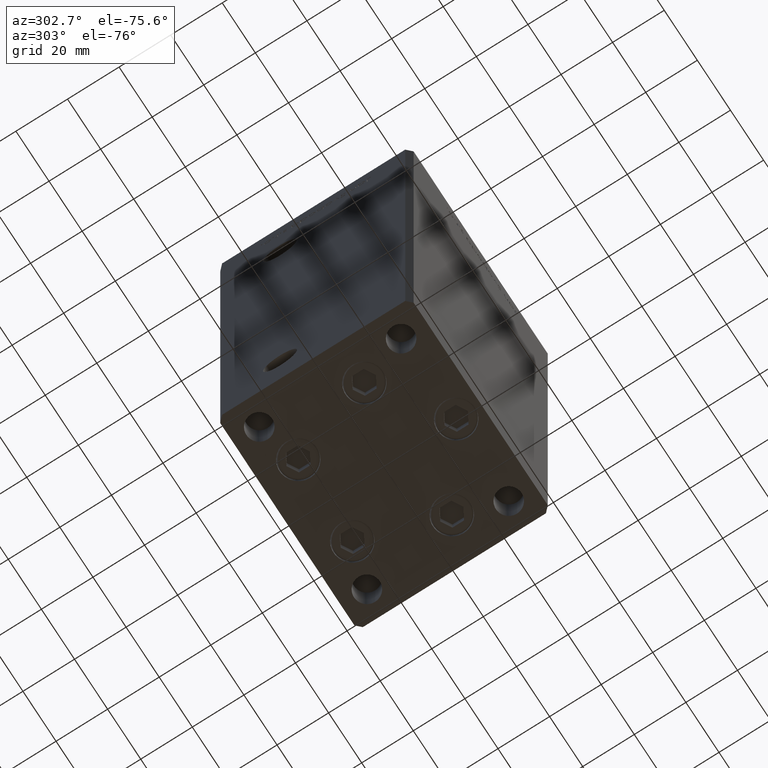
[diagram: clean part render]
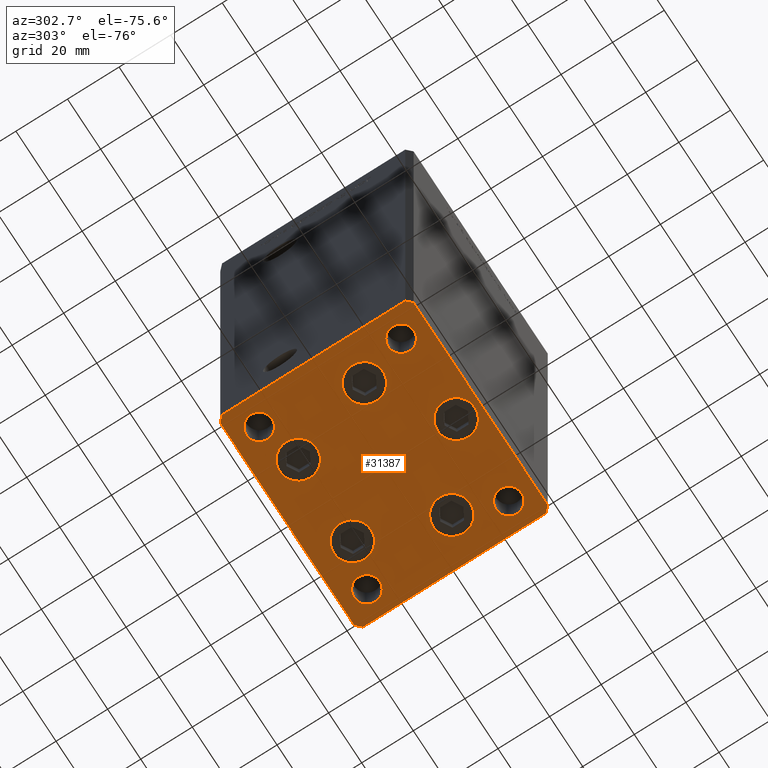
[diagram: same view with one face highlighted and labeled with its STEP entity id]
A machine part, auxiliary view. The second image highlights one B-rep face of the part: STEP entity #31387.
In plain terms, the highlighted planar face has unit normal (0, 0, -1).
Its self-contained STEP definition (entity closure, byte-faithful):
#150 = EDGE_CURVE ( 'NONE', #41811, #26216, #30981, .T. ) ;
#286 = EDGE_CURVE ( 'NONE', #32165, #18664, #42970, .T. ) ;
#545 = CARTESIAN_POINT ( 'NONE',  ( -40.50000000000000711, 37.49999999999997868, 0.000000000000000000 ) ) ;
#552 = CARTESIAN_POINT ( 'NONE',  ( -7.249999999999997335, -28.00000000000000000, 0.000000000000000000 ) ) ;
#1009 = VERTEX_POINT ( 'NONE', #41678 ) ;
#1276 = CARTESIAN_POINT ( 'NONE',  ( 26.39865316429776954, -9.333333333333330373, 0.000000000000000000 ) ) ;
#1353 = CARTESIAN_POINT ( 'NONE',  ( -37.50000000000000711, 27.50000000000000355, 0.000000000000000000 ) ) ;
#1846 = CARTESIAN_POINT ( 'NONE',  ( 16.32291334290542295, 22.75000000000000000, 0.000000000000000000 ) ) ;
#2514 = CARTESIAN_POINT ( 'NONE',  ( 40.50000000000000000, -37.50000000000000711, 0.000000000000000000 ) ) ;
#2724 = DIRECTION ( 'NONE',  ( 1.000000000000000000, 0.000000000000000000, 0.000000000000000000 ) ) ;
#3072 = EDGE_CURVE ( 'NONE', #12134, #10012, #31247, .T. ) ;
#3199 = EDGE_CURVE ( 'NONE', #18664, #13181, #16350, .T. ) ;
#3408 = ORIENTED_EDGE ( 'NONE', *, *, #12516, .T. ) ;
#3484 = EDGE_CURVE ( 'NONE', #37125, #48735, #24334, .T. ) ;
#3594 = EDGE_LOOP ( 'NONE', ( #42714, #15016 ) ) ;
#4018 = DIRECTION ( 'NONE',  ( 0.7071067811865474617, 0.7071067811865474617, 0.000000000000000000 ) ) ;
#4193 = DIRECTION ( 'NONE',  ( 1.000000000000000000, 0.000000000000000000, 0.000000000000000000 ) ) ;
#4529 = CARTESIAN_POINT ( 'NONE',  ( 9.072913342905424727, 22.75000000000000000, 0.000000000000000000 ) ) ;
#5028 = CARTESIAN_POINT ( 'NONE',  ( -26.39865316429776954, -9.333333333333337478, 0.000000000000000000 ) ) ;
#5107 = LINE ( 'NONE', #41504, #9364 ) ;
#5206 = DIRECTION ( 'NONE',  ( 0.000000000000000000, -0.000000000000000000, -1.000000000000000000 ) ) ;
#5222 = VERTEX_POINT ( 'NONE', #25588 ) ;
#5261 = CIRCLE ( 'NONE', #16162, 5.000000000000000888 ) ;
#5386 = EDGE_CURVE ( 'NONE', #26216, #41811, #6687, .T. ) ;
#5472 = DIRECTION ( 'NONE',  ( 0.7071067811865463515, -0.7071067811865487940, 0.000000000000000000 ) ) ;
#5665 = AXIS2_PLACEMENT_3D ( 'NONE', #29285, #29027, #41161 ) ;
#5703 = DIRECTION ( 'NONE',  ( 1.000000000000000000, 0.000000000000000000, 0.000000000000000000 ) ) ;
#5773 = DIRECTION ( 'NONE',  ( 0.000000000000000000, -0.000000000000000000, -1.000000000000000000 ) ) ;
#6368 = CARTESIAN_POINT ( 'NONE',  ( -16.32291334290543006, 22.74999999999999645, 0.000000000000000000 ) ) ;
#6644 = CARTESIAN_POINT ( 'NONE',  ( 40.49999999999991473, 37.50000000000000711, 0.000000000000000000 ) ) ;
#6687 = CIRCLE ( 'NONE', #18479, 7.249999999999999112 ) ;
#6985 = ORIENTED_EDGE ( 'NONE', *, *, #20418, .T. ) ;
#7387 = CARTESIAN_POINT ( 'NONE',  ( 27.50000000000000355, 27.49999999999999645, 0.000000000000000000 ) ) ;
#7642 = VECTOR ( 'NONE', #48804, 1000.000000000000000 ) ;
#7651 = EDGE_LOOP ( 'NONE', ( #12923, #8435, #42142, #8816, #23055, #43240, #42962, #41369 ) ) ;
#7696 = AXIS2_PLACEMENT_3D ( 'NONE', #20681, #33328, #36762 ) ;
#7794 = DIRECTION ( 'NONE',  ( 0.000000000000000000, -0.000000000000000000, -1.000000000000000000 ) ) ;
#7810 = EDGE_LOOP ( 'NONE', ( #36598, #34532 ) ) ;
#8435 = ORIENTED_EDGE ( 'NONE', *, *, #39105, .T. ) ;
#8816 = ORIENTED_EDGE ( 'NONE', *, *, #33395, .T. ) ;
#9018 = CARTESIAN_POINT ( 'NONE',  ( 33.64865316429776954, -9.333333333333328596, 0.000000000000000000 ) ) ;
#9108 = EDGE_CURVE ( 'NONE', #5222, #36994, #29457, .T. ) ;
#9303 = DIRECTION ( 'NONE',  ( 0.000000000000000000, -0.000000000000000000, -1.000000000000000000 ) ) ;
#9364 = VECTOR ( 'NONE', #37548, 1000.000000000000000 ) ;
#9797 = CARTESIAN_POINT ( 'NONE',  ( -42.50000000000000711, 35.49999999999997158, 0.000000000000000000 ) ) ;
#10012 = VERTEX_POINT ( 'NONE', #36826 ) ;
#10337 = DIRECTION ( 'NONE',  ( 0.000000000000000000, -0.000000000000000000, -1.000000000000000000 ) ) ;
#10515 = CARTESIAN_POINT ( 'NONE',  ( -27.50000000000000000, 27.50000000000000355, 0.000000000000000000 ) ) ;
#10528 = CARTESIAN_POINT ( 'NONE',  ( -33.64865316429776954, -9.333333333333337478, 0.000000000000000000 ) ) ;
#10530 = VERTEX_POINT ( 'NONE', #7387 ) ;
#10655 = ORIENTED_EDGE ( 'NONE', *, *, #43672, .T. ) ;
#10822 = VECTOR ( 'NONE', #22908, 1000.000000000000000 ) ;
#11326 = AXIS2_PLACEMENT_3D ( 'NONE', #14290, #10337, #16025 ) ;
#11335 = LINE ( 'NONE', #46707, #40214 ) ;
#11938 = DIRECTION ( 'NONE',  ( 1.000000000000000000, 0.000000000000000000, 0.000000000000000000 ) ) ;
#11941 = CARTESIAN_POINT ( 'NONE',  ( -27.50000000000000000, -27.49999999999999645, 0.000000000000000000 ) ) ;
#12020 = AXIS2_PLACEMENT_3D ( 'NONE', #5028, #12681, #40910 ) ;
#12134 = VERTEX_POINT ( 'NONE', #42293 ) ;
#12173 = FACE_BOUND ( 'NONE', #7810, .T. ) ;
#12452 = AXIS2_PLACEMENT_3D ( 'NONE', #1846, #17925, #30048 ) ;
#12516 = EDGE_CURVE ( 'NONE', #36091, #41858, #12785, .T. ) ;
#12584 = EDGE_LOOP ( 'NONE', ( #20839, #49199 ) ) ;
#12681 = DIRECTION ( 'NONE',  ( 0.000000000000000000, -0.000000000000000000, -1.000000000000000000 ) ) ;
#12785 = CIRCLE ( 'NONE', #32156, 4.999999999999997335 ) ;
#12923 = ORIENTED_EDGE ( 'NONE', *, *, #9108, .T. ) ;
#13181 = VERTEX_POINT ( 'NONE', #48033 ) ;
#13244 = VERTEX_POINT ( 'NONE', #45573 ) ;
#13479 = LINE ( 'NONE', #9797, #34169 ) ;
#13478 = FACE_BOUND ( 'NONE', #28835, .T. ) ;
#13540 = EDGE_CURVE ( 'NONE', #10012, #12134, #48225, .T. ) ;
#14216 = EDGE_CURVE ( 'NONE', #22393, #23557, #16202, .T. ) ;
#14262 = DIRECTION ( 'NONE',  ( -0.000000000000000000, 0.000000000000000000, 1.000000000000000000 ) ) ;
#14290 = CARTESIAN_POINT ( 'NONE',  ( 3.429011037612589276E-15, -28.00000000000000000, 0.000000000000000000 ) ) ;
#15016 = ORIENTED_EDGE ( 'NONE', *, *, #3072, .T. ) ;
#15267 = ORIENTED_EDGE ( 'NONE', *, *, #43090, .T. ) ;
#15283 = CIRCLE ( 'NONE', #7696, 4.999999999999997335 ) ;
#15386 = CIRCLE ( 'NONE', #33076, 7.250000000000000000 ) ;
#15570 = CARTESIAN_POINT ( 'NONE',  ( -40.50000000000000711, 37.49999999999997868, 0.000000000000000000 ) ) ;
#15719 = DIRECTION ( 'NONE',  ( 1.000000000000000000, 0.000000000000000000, 0.000000000000000000 ) ) ;
#16025 = DIRECTION ( 'NONE',  ( 1.000000000000000000, 0.000000000000000000, 0.000000000000000000 ) ) ;
#16162 = AXIS2_PLACEMENT_3D ( 'NONE', #52075, #40707, #24346 ) ;
#16202 = CIRCLE ( 'NONE', #12020, 7.249999999999999112 ) ;
#16236 = CIRCLE ( 'NONE', #42377, 7.249999999999999112 ) ;
#16350 = LINE ( 'NONE', #545, #7642 ) ;
#16374 = CARTESIAN_POINT ( 'NONE',  ( -40.49999999999999289, -37.50000000000002132, 0.000000000000000000 ) ) ;
#16397 = FACE_BOUND ( 'NONE', #26149, .T. ) ;
#17081 = CIRCLE ( 'NONE', #45705, 7.249999999999999112 ) ;
#17386 = CARTESIAN_POINT ( 'NONE',  ( 37.50000000000000000, 27.49999999999999645, 0.000000000000000000 ) ) ;
#17569 = ORIENTED_EDGE ( 'NONE', *, *, #32428, .F. ) ;
#17778 = ORIENTED_EDGE ( 'NONE', *, *, #44085, .F. ) ;
#17900 = CARTESIAN_POINT ( 'NONE',  ( 42.50000000000000711, -35.50000000000000000, 0.000000000000000000 ) ) ;
#17925 = DIRECTION ( 'NONE',  ( 0.000000000000000000, -0.000000000000000000, -1.000000000000000000 ) ) ;
#18091 = CARTESIAN_POINT ( 'NONE',  ( 32.50000000000000000, -27.49999999999999645, 0.000000000000000000 ) ) ;
#18479 = AXIS2_PLACEMENT_3D ( 'NONE', #23961, #36097, #4193 ) ;
#18606 = AXIS2_PLACEMENT_3D ( 'NONE', #6368, #22457, #23480 ) ;
#18664 = VERTEX_POINT ( 'NONE', #15570 ) ;
#18756 = AXIS2_PLACEMENT_3D ( 'NONE', #51606, #7794, #15719 ) ;
#18985 = ORIENTED_EDGE ( 'NONE', *, *, #3484, .F. ) ;
#20287 = EDGE_LOOP ( 'NONE', ( #21771, #38415 ) ) ;
#20418 = EDGE_CURVE ( 'NONE', #13244, #42791, #34063, .T. ) ;
#20427 = AXIS2_PLACEMENT_3D ( 'NONE', #29474, #37916, #30517 ) ;
#20681 = CARTESIAN_POINT ( 'NONE',  ( 32.50000000000000000, 27.49999999999999645, 0.000000000000000000 ) ) ;
#20839 = ORIENTED_EDGE ( 'NONE', *, *, #41990, .T. ) ;
#20859 = EDGE_LOOP ( 'NONE', ( #10655, #6985 ) ) ;
#21259 = VERTEX_POINT ( 'NONE', #17900 ) ;
#21302 = DIRECTION ( 'NONE',  ( 1.000000000000000000, 0.000000000000000000, 0.000000000000000000 ) ) ;
#21405 = FACE_OUTER_BOUND ( 'NONE', #7651, .T. ) ;
#21668 = VECTOR ( 'NONE', #30194, 1000.000000000000114 ) ;
#21764 = LINE ( 'NONE', #42326, #21668 ) ;
#21771 = ORIENTED_EDGE ( 'NONE', *, *, #5386, .T. ) ;
#21926 = DIRECTION ( 'NONE',  ( 0.000000000000000000, -0.000000000000000000, -1.000000000000000000 ) ) ;
#22111 = DIRECTION ( 'NONE',  ( 1.000000000000000000, 0.000000000000000000, 0.000000000000000000 ) ) ;
#22393 = VERTEX_POINT ( 'NONE', #38269 ) ;
#22435 = CARTESIAN_POINT ( 'NONE',  ( 0.000000000000000000, 0.000000000000000000, 0.000000000000000000 ) ) ;
#22457 = DIRECTION ( 'NONE',  ( 0.000000000000000000, -0.000000000000000000, -1.000000000000000000 ) ) ;
#22603 = AXIS2_PLACEMENT_3D ( 'NONE', #45440, #9303, #41482 ) ;
#22908 = DIRECTION ( 'NONE',  ( -1.000000000000000000, -3.426614273534436165E-16, 0.000000000000000000 ) ) ;
#23055 = ORIENTED_EDGE ( 'NONE', *, *, #32660, .T. ) ;
#23480 = DIRECTION ( 'NONE',  ( 1.000000000000000000, 0.000000000000000000, 0.000000000000000000 ) ) ;
#23536 = DIRECTION ( 'NONE',  ( -0.000000000000000000, 0.000000000000000000, 1.000000000000000000 ) ) ;
#23557 = VERTEX_POINT ( 'NONE', #10528 ) ;
#23668 = CARTESIAN_POINT ( 'NONE',  ( 40.49999999999991473, 37.50000000000000711, 0.000000000000000000 ) ) ;
#23961 = CARTESIAN_POINT ( 'NONE',  ( 16.32291334290542295, 22.75000000000000000, 0.000000000000000000 ) ) ;
#24334 = CIRCLE ( 'NONE', #27726, 5.000000000000000888 ) ;
#24346 = DIRECTION ( 'NONE',  ( 1.000000000000000000, 0.000000000000000000, 0.000000000000000000 ) ) ;
#24584 = EDGE_CURVE ( 'NONE', #24930, #27734, #26476, .T. ) ;
#24829 = LINE ( 'NONE', #32740, #35820 ) ;
#24930 = VERTEX_POINT ( 'NONE', #46065 ) ;
#25588 = CARTESIAN_POINT ( 'NONE',  ( -42.50000000000000000, -35.50000000000000711, 0.000000000000000000 ) ) ;
#25597 = FACE_BOUND ( 'NONE', #12584, .T. ) ;
#25882 = CARTESIAN_POINT ( 'NONE',  ( 32.50000000000000000, -27.49999999999999645, 0.000000000000000000 ) ) ;
#26149 = EDGE_LOOP ( 'NONE', ( #50903, #17778 ) ) ;
#26216 = VERTEX_POINT ( 'NONE', #4529 ) ;
#26476 = CIRCLE ( 'NONE', #29842, 7.249999999999999112 ) ;
#26895 = EDGE_CURVE ( 'NONE', #29805, #21259, #24829, .T. ) ;
#27726 = AXIS2_PLACEMENT_3D ( 'NONE', #47314, #23536, #51018 ) ;
#27734 = VERTEX_POINT ( 'NONE', #9018 ) ;
#28663 = EDGE_CURVE ( 'NONE', #13181, #5222, #13479, .T. ) ;
#28835 = EDGE_LOOP ( 'NONE', ( #17569, #18985 ) ) ;
#29027 = DIRECTION ( 'NONE',  ( -0.000000000000000000, 0.000000000000000000, 1.000000000000000000 ) ) ;
#29285 = CARTESIAN_POINT ( 'NONE',  ( -32.50000000000000000, 27.50000000000000355, 0.000000000000000000 ) ) ;
#29457 = LINE ( 'NONE', #41600, #50648 ) ;
#29474 = CARTESIAN_POINT ( 'NONE',  ( 32.50000000000000000, 27.49999999999999645, 0.000000000000000000 ) ) ;
#29560 = FACE_BOUND ( 'NONE', #31739, .T. ) ;
#29805 = VERTEX_POINT ( 'NONE', #2514 ) ;
#29842 = AXIS2_PLACEMENT_3D ( 'NONE', #42157, #5773, #22111 ) ;
#30048 = DIRECTION ( 'NONE',  ( 1.000000000000000000, 0.000000000000000000, 0.000000000000000000 ) ) ;
#30109 = DIRECTION ( 'NONE',  ( 1.000000000000000000, 0.000000000000000000, 0.000000000000000000 ) ) ;
#30194 = DIRECTION ( 'NONE',  ( -0.7071067811865474617, 0.7071067811865474617, 0.000000000000000000 ) ) ;
#30198 = CARTESIAN_POINT ( 'NONE',  ( 37.50000000000000000, -27.49999999999999645, 0.000000000000000000 ) ) ;
#30517 = DIRECTION ( 'NONE',  ( 1.000000000000000000, 0.000000000000000000, 0.000000000000000000 ) ) ;
#30981 = CIRCLE ( 'NONE', #12452, 7.249999999999999112 ) ;
#31050 = CARTESIAN_POINT ( 'NONE',  ( -37.50000000000000711, -27.49999999999999645, 0.000000000000000000 ) ) ;
#31247 = CIRCLE ( 'NONE', #18606, 7.249999999999999112 ) ;
#31387 = ADVANCED_FACE ( 'NONE', ( #36169, #32201, #36431, #48321, #12173, #16397, #29560, #13478, #21405, #25597 ), #34046, .T. ) ;
#31491 = EDGE_LOOP ( 'NONE', ( #35324, #15267 ) ) ;
#31739 = EDGE_LOOP ( 'NONE', ( #40288, #3408 ) ) ;
#31875 = VERTEX_POINT ( 'NONE', #11941 ) ;
#32156 = AXIS2_PLACEMENT_3D ( 'NONE', #25882, #21926, #30109 ) ;
#32165 = VERTEX_POINT ( 'NONE', #6644 ) ;
#32201 = FACE_BOUND ( 'NONE', #20287, .T. ) ;
#32239 = CARTESIAN_POINT ( 'NONE',  ( 3.429011037612589276E-15, -28.00000000000000000, 0.000000000000000000 ) ) ;
#32270 = CIRCLE ( 'NONE', #34825, 4.999999999999997335 ) ;
#32428 = EDGE_CURVE ( 'NONE', #48735, #37125, #40181, .T. ) ;
#32660 = EDGE_CURVE ( 'NONE', #1009, #32165, #21764, .T. ) ;
#32740 = CARTESIAN_POINT ( 'NONE',  ( 40.50000000000000000, -37.50000000000000711, 0.000000000000000000 ) ) ;
#32843 = CARTESIAN_POINT ( 'NONE',  ( 23.57291334290542295, 22.75000000000000000, 0.000000000000000000 ) ) ;
#33076 = AXIS2_PLACEMENT_3D ( 'NONE', #32239, #36467, #11938 ) ;
#33328 = DIRECTION ( 'NONE',  ( -0.000000000000000000, 0.000000000000000000, 1.000000000000000000 ) ) ;
#33395 = EDGE_CURVE ( 'NONE', #21259, #1009, #11335, .T. ) ;
#33697 = VERTEX_POINT ( 'NONE', #31050 ) ;
#34046 = PLANE ( 'NONE',  #40987 ) ;
#34063 = CIRCLE ( 'NONE', #11326, 7.250000000000000000 ) ;
#34169 = VECTOR ( 'NONE', #46454, 1000.000000000000000 ) ;
#34532 = ORIENTED_EDGE ( 'NONE', *, *, #14216, .T. ) ;
#34825 = AXIS2_PLACEMENT_3D ( 'NONE', #18091, #38394, #5703 ) ;
#35324 = ORIENTED_EDGE ( 'NONE', *, *, #24584, .T. ) ;
#35338 = DIRECTION ( 'NONE',  ( -1.172770800660376741E-15, 1.000000000000000000, 0.000000000000000000 ) ) ;
#35820 = VECTOR ( 'NONE', #4018, 1000.000000000000114 ) ;
#36091 = VERTEX_POINT ( 'NONE', #47149 ) ;
#36097 = DIRECTION ( 'NONE',  ( 0.000000000000000000, -0.000000000000000000, -1.000000000000000000 ) ) ;
#36169 = FACE_BOUND ( 'NONE', #3594, .T. ) ;
#36431 = FACE_BOUND ( 'NONE', #31491, .T. ) ;
#36467 = DIRECTION ( 'NONE',  ( 0.000000000000000000, -0.000000000000000000, -1.000000000000000000 ) ) ;
#36598 = ORIENTED_EDGE ( 'NONE', *, *, #48417, .T. ) ;
#36762 = DIRECTION ( 'NONE',  ( 1.000000000000000000, 0.000000000000000000, 0.000000000000000000 ) ) ;
#36810 = EDGE_CURVE ( 'NONE', #33697, #31875, #52092, .T. ) ;
#36826 = CARTESIAN_POINT ( 'NONE',  ( -23.57291334290543006, 22.74999999999999645, 0.000000000000000000 ) ) ;
#36994 = VERTEX_POINT ( 'NONE', #16374 ) ;
#37125 = VERTEX_POINT ( 'NONE', #1353 ) ;
#37548 = DIRECTION ( 'NONE',  ( 1.000000000000000000, 1.713307136767217096E-16, 0.000000000000000000 ) ) ;
#37916 = DIRECTION ( 'NONE',  ( -0.000000000000000000, 0.000000000000000000, 1.000000000000000000 ) ) ;
#37999 = DIRECTION ( 'NONE',  ( 1.000000000000000000, 0.000000000000000000, 0.000000000000000000 ) ) ;
#38059 = CARTESIAN_POINT ( 'NONE',  ( -26.39865316429776954, -9.333333333333337478, 0.000000000000000000 ) ) ;
#38269 = CARTESIAN_POINT ( 'NONE',  ( -19.14865316429777309, -9.333333333333335702, 0.000000000000000000 ) ) ;
#38394 = DIRECTION ( 'NONE',  ( 0.000000000000000000, -0.000000000000000000, -1.000000000000000000 ) ) ;
#38415 = ORIENTED_EDGE ( 'NONE', *, *, #150, .T. ) ;
#39105 = EDGE_CURVE ( 'NONE', #36994, #29805, #5107, .T. ) ;
#39117 = EDGE_CURVE ( 'NONE', #47659, #10530, #15283, .T. ) ;
#40181 = CIRCLE ( 'NONE', #5665, 5.000000000000000888 ) ;
#40214 = VECTOR ( 'NONE', #35338, 1000.000000000000000 ) ;
#40288 = ORIENTED_EDGE ( 'NONE', *, *, #45350, .T. ) ;
#40707 = DIRECTION ( 'NONE',  ( 0.000000000000000000, -0.000000000000000000, -1.000000000000000000 ) ) ;
#40910 = DIRECTION ( 'NONE',  ( 1.000000000000000000, 0.000000000000000000, 0.000000000000000000 ) ) ;
#40987 = AXIS2_PLACEMENT_3D ( 'NONE', #22435, #14262, #37999 ) ;
#41161 = DIRECTION ( 'NONE',  ( 1.000000000000000000, 0.000000000000000000, 0.000000000000000000 ) ) ;
#41369 = ORIENTED_EDGE ( 'NONE', *, *, #28663, .T. ) ;
#41482 = DIRECTION ( 'NONE',  ( 1.000000000000000000, 0.000000000000000000, 0.000000000000000000 ) ) ;
#41504 = CARTESIAN_POINT ( 'NONE',  ( -40.49999999999999289, -37.50000000000002132, 0.000000000000000000 ) ) ;
#41600 = CARTESIAN_POINT ( 'NONE',  ( -42.50000000000000000, -35.50000000000000711, 0.000000000000000000 ) ) ;
#41678 = CARTESIAN_POINT ( 'NONE',  ( 42.49999999999992895, 35.50000000000000000, 0.000000000000000000 ) ) ;
#41811 = VERTEX_POINT ( 'NONE', #32843 ) ;
#41858 = VERTEX_POINT ( 'NONE', #30198 ) ;
#41990 = EDGE_CURVE ( 'NONE', #31875, #33697, #5261, .T. ) ;
#42142 = ORIENTED_EDGE ( 'NONE', *, *, #26895, .T. ) ;
#42157 = CARTESIAN_POINT ( 'NONE',  ( 26.39865316429776954, -9.333333333333330373, 0.000000000000000000 ) ) ;
#42293 = CARTESIAN_POINT ( 'NONE',  ( -9.072913342905431833, 22.74999999999999645, 0.000000000000000000 ) ) ;
#42326 = CARTESIAN_POINT ( 'NONE',  ( 42.49999999999992895, 35.50000000000000000, 0.000000000000000000 ) ) ;
#42377 = AXIS2_PLACEMENT_3D ( 'NONE', #38059, #50474, #2724 ) ;
#42714 = ORIENTED_EDGE ( 'NONE', *, *, #13540, .T. ) ;
#42791 = VERTEX_POINT ( 'NONE', #552 ) ;
#42962 = ORIENTED_EDGE ( 'NONE', *, *, #3199, .T. ) ;
#42970 = LINE ( 'NONE', #23668, #10822 ) ;
#43090 = EDGE_CURVE ( 'NONE', #27734, #24930, #17081, .T. ) ;
#43186 = CIRCLE ( 'NONE', #20427, 4.999999999999997335 ) ;
#43240 = ORIENTED_EDGE ( 'NONE', *, *, #286, .T. ) ;
#43672 = EDGE_CURVE ( 'NONE', #42791, #13244, #15386, .T. ) ;
#44085 = EDGE_CURVE ( 'NONE', #10530, #47659, #43186, .T. ) ;
#45350 = EDGE_CURVE ( 'NONE', #41858, #36091, #32270, .T. ) ;
#45440 = CARTESIAN_POINT ( 'NONE',  ( -32.50000000000000000, -27.49999999999999645, 0.000000000000000000 ) ) ;
#45573 = CARTESIAN_POINT ( 'NONE',  ( 7.250000000000003553, -28.00000000000000000, 0.000000000000000000 ) ) ;
#45705 = AXIS2_PLACEMENT_3D ( 'NONE', #1276, #5206, #21302 ) ;
#46065 = CARTESIAN_POINT ( 'NONE',  ( 19.14865316429777309, -9.333333333333330373, 0.000000000000000000 ) ) ;
#46454 = DIRECTION ( 'NONE',  ( 9.773090005503140331E-17, -1.000000000000000000, 0.000000000000000000 ) ) ;
#46707 = CARTESIAN_POINT ( 'NONE',  ( 42.50000000000000711, -35.50000000000000000, 0.000000000000000000 ) ) ;
#47149 = CARTESIAN_POINT ( 'NONE',  ( 27.50000000000000355, -27.49999999999999645, 0.000000000000000000 ) ) ;
#47314 = CARTESIAN_POINT ( 'NONE',  ( -32.50000000000000000, 27.50000000000000355, 0.000000000000000000 ) ) ;
#47659 = VERTEX_POINT ( 'NONE', #17386 ) ;
#48033 = CARTESIAN_POINT ( 'NONE',  ( -42.50000000000000711, 35.49999999999997158, 0.000000000000000000 ) ) ;
#48225 = CIRCLE ( 'NONE', #18756, 7.249999999999999112 ) ;
#48321 = FACE_BOUND ( 'NONE', #20859, .T. ) ;
#48417 = EDGE_CURVE ( 'NONE', #23557, #22393, #16236, .T. ) ;
#48735 = VERTEX_POINT ( 'NONE', #10515 ) ;
#48804 = DIRECTION ( 'NONE',  ( -0.7071067811865463515, -0.7071067811865487940, 0.000000000000000000 ) ) ;
#49199 = ORIENTED_EDGE ( 'NONE', *, *, #36810, .T. ) ;
#50474 = DIRECTION ( 'NONE',  ( 0.000000000000000000, -0.000000000000000000, -1.000000000000000000 ) ) ;
#50648 = VECTOR ( 'NONE', #5472, 1000.000000000000000 ) ;
#50903 = ORIENTED_EDGE ( 'NONE', *, *, #39117, .F. ) ;
#51018 = DIRECTION ( 'NONE',  ( 1.000000000000000000, 0.000000000000000000, 0.000000000000000000 ) ) ;
#51606 = CARTESIAN_POINT ( 'NONE',  ( -16.32291334290543006, 22.74999999999999645, 0.000000000000000000 ) ) ;
#52075 = CARTESIAN_POINT ( 'NONE',  ( -32.50000000000000000, -27.49999999999999645, 0.000000000000000000 ) ) ;
#52092 = CIRCLE ( 'NONE', #22603, 5.000000000000000888 ) ;